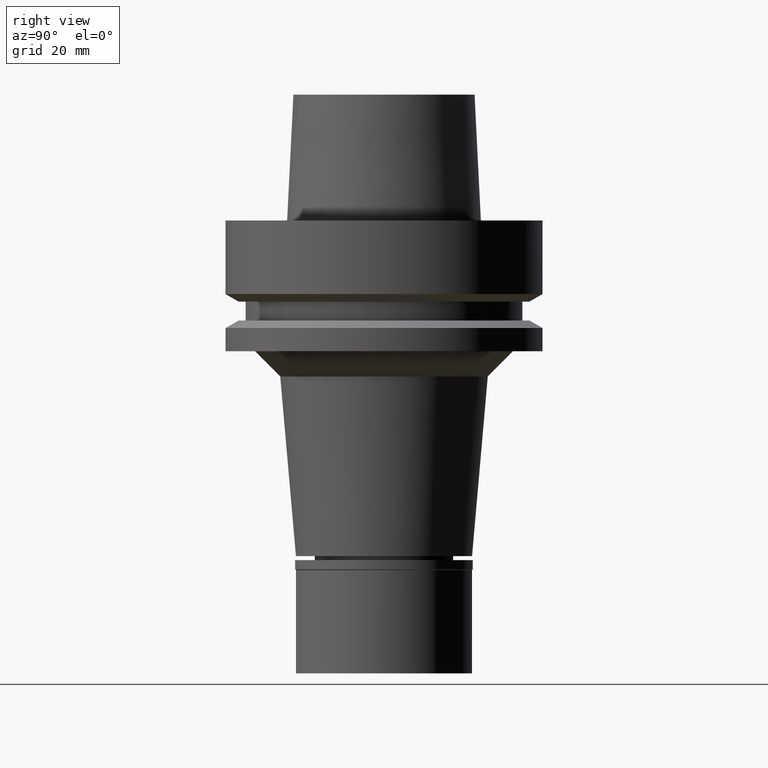
[diagram: clean part render]
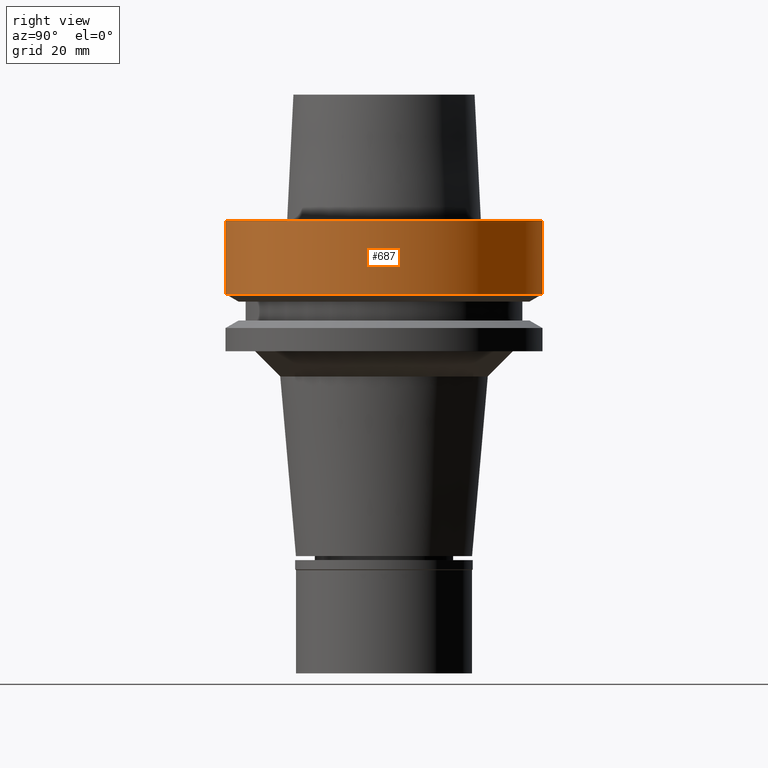
[diagram: same view with one face highlighted and labeled with its STEP entity id]
A machine part, right view. The second image highlights one B-rep face of the part: STEP entity #687.
In plain terms, the highlighted cylindrical surface (partial cylindrical patch) has radius 31.5 mm, axis along (0, 0, 1).
Its self-contained STEP definition (entity closure, byte-faithful):
#109 = AXIS2_PLACEMENT_3D ( 'NONE', #1960, #1096, #1078 ) ;
#148 = EDGE_CURVE ( 'NONE', #2102, #898, #2445, .T. ) ;
#169 = ORIENTED_EDGE ( 'NONE', *, *, #1435, .T. ) ;
#171 = ORIENTED_EDGE ( 'NONE', *, *, #218, .T. ) ;
#218 = EDGE_CURVE ( 'NONE', #2102, #432, #527, .T. ) ;
#227 = DIRECTION ( 'NONE',  ( 0.0000000000000000000, 4.130355870612999632E-14, -1.000000000000000000 ) ) ;
#404 = LINE ( 'NONE', #2421, #992 ) ;
#432 = VERTEX_POINT ( 'NONE', #1392 ) ;
#456 = DIRECTION ( 'NONE',  ( 0.0000000000000000000, 0.0000000000000000000, 1.000000000000000000 ) ) ;
#510 = ORIENTED_EDGE ( 'NONE', *, *, #697, .T. ) ;
#527 = CIRCLE ( 'NONE', #109, 31.50000000000000000 ) ;
#598 = AXIS2_PLACEMENT_3D ( 'NONE', #1206, #2086, #1177 ) ;
#646 = CARTESIAN_POINT ( 'NONE',  ( 0.0000000000000000000, 31.50000000000000000, 8.526512829120999020E-14 ) ) ;
#687 = ADVANCED_FACE ( 'NONE', ( #1345 ), #2402, .T. ) ;
#697 = EDGE_CURVE ( 'NONE', #432, #1439, #404, .T. ) ;
#898 = VERTEX_POINT ( 'NONE', #1141 ) ;
#992 = VECTOR ( 'NONE', #2444, 1000.000000000000000 ) ;
#1045 = AXIS2_PLACEMENT_3D ( 'NONE', #1557, #456, #2213 ) ;
#1078 = DIRECTION ( 'NONE',  ( 0.0000000000000000000, 1.000000000000000000, 0.0000000000000000000 ) ) ;
#1096 = DIRECTION ( 'NONE',  ( 0.0000000000000000000, 0.0000000000000000000, -1.000000000000000000 ) ) ;
#1141 = CARTESIAN_POINT ( 'NONE',  ( 0.0000000000000000000, 31.50000000000000000, -14.62250092523999889 ) ) ;
#1177 = DIRECTION ( 'NONE',  ( 0.0000000000000000000, -1.000000000000000000, 0.0000000000000000000 ) ) ;
#1206 = CARTESIAN_POINT ( 'NONE',  ( 0.0000000000000000000, 0.0000000000000000000, -14.62250092523999889 ) ) ;
#1345 = FACE_OUTER_BOUND ( 'NONE', #1735, .T. ) ;
#1392 = CARTESIAN_POINT ( 'NONE',  ( 0.0000000000000000000, -31.50000000000000000, 1.278976924367999843E-13 ) ) ;
#1435 = EDGE_CURVE ( 'NONE', #1439, #898, #1853, .T. ) ;
#1439 = VERTEX_POINT ( 'NONE', #2694 ) ;
#1557 = CARTESIAN_POINT ( 'NONE',  ( 0.0000000000000000000, 0.0000000000000000000, -88.71500000000000341 ) ) ;
#1735 = EDGE_LOOP ( 'NONE', ( #171, #510, #169, #2114 ) ) ;
#1853 = CIRCLE ( 'NONE', #598, 31.50000000000000000 ) ;
#1960 = CARTESIAN_POINT ( 'NONE',  ( 0.0000000000000000000, 0.0000000000000000000, 1.278976924367999843E-13 ) ) ;
#2086 = DIRECTION ( 'NONE',  ( 0.0000000000000000000, 0.0000000000000000000, 1.000000000000000000 ) ) ;
#2102 = VERTEX_POINT ( 'NONE', #2268 ) ;
#2114 = ORIENTED_EDGE ( 'NONE', *, *, #148, .F. ) ;
#2213 = DIRECTION ( 'NONE',  ( 0.0000000000000000000, 1.000000000000000000, 0.0000000000000000000 ) ) ;
#2268 = CARTESIAN_POINT ( 'NONE',  ( 0.0000000000000000000, 31.50000000000000000, 1.278976924367999843E-13 ) ) ;
#2288 = VECTOR ( 'NONE', #227, 1000.000000000000000 ) ;
#2402 = CYLINDRICAL_SURFACE ( 'NONE', #1045, 31.50000000000000000 ) ;
#2421 = CARTESIAN_POINT ( 'NONE',  ( 0.0000000000000000000, -31.50000000000000000, 8.526512829120999020E-14 ) ) ;
#2444 = DIRECTION ( 'NONE',  ( 0.0000000000000000000, -4.130355870612999632E-14, -1.000000000000000000 ) ) ;
#2445 = LINE ( 'NONE', #646, #2288 ) ;
#2694 = CARTESIAN_POINT ( 'NONE',  ( 0.0000000000000000000, -31.50000000000000000, -14.62250092523999889 ) ) ;